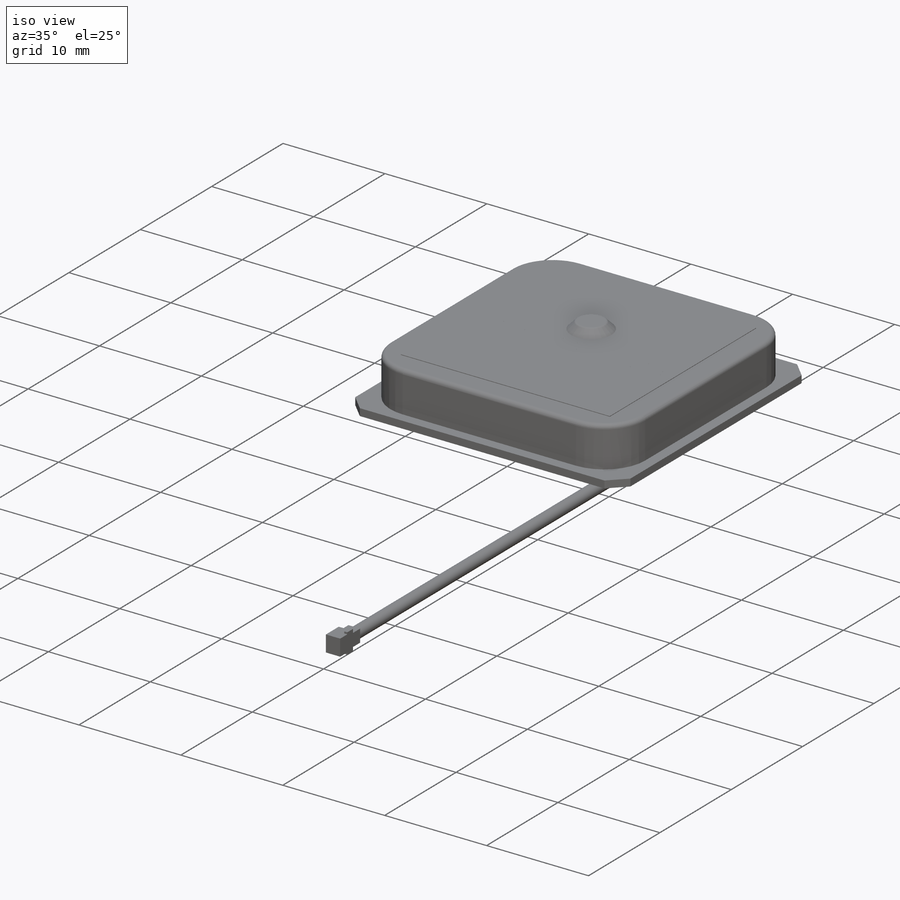
[diagram: iso view]
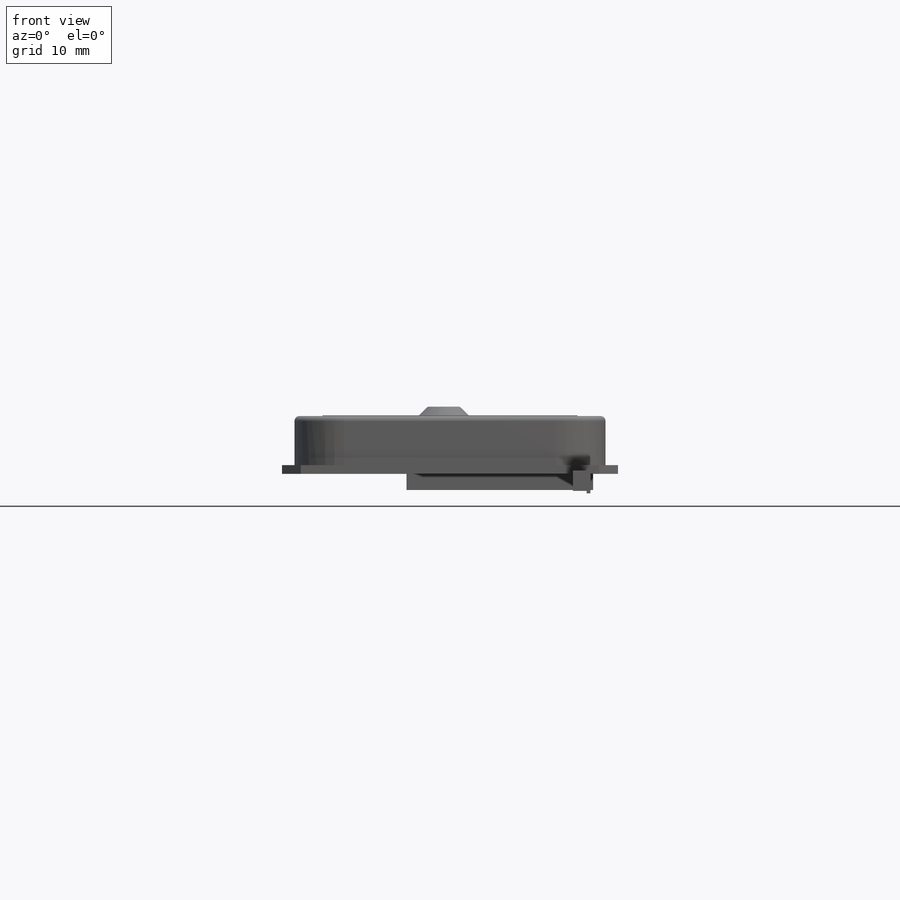
[diagram: front view]
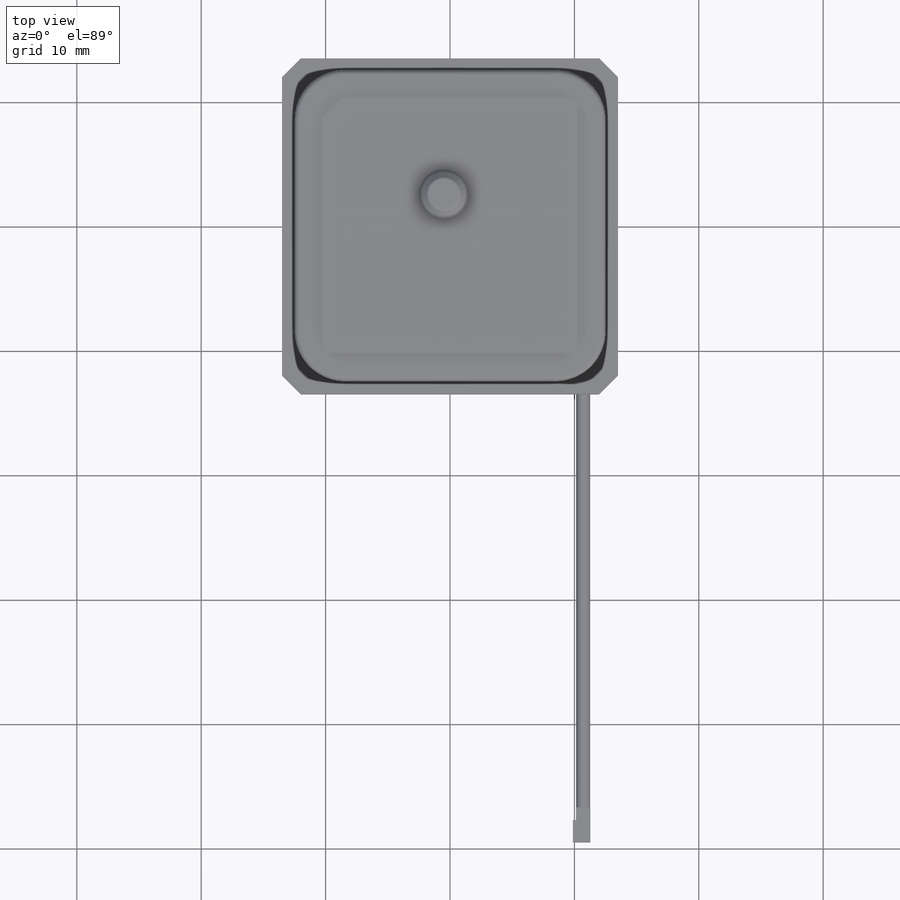
[diagram: top view]
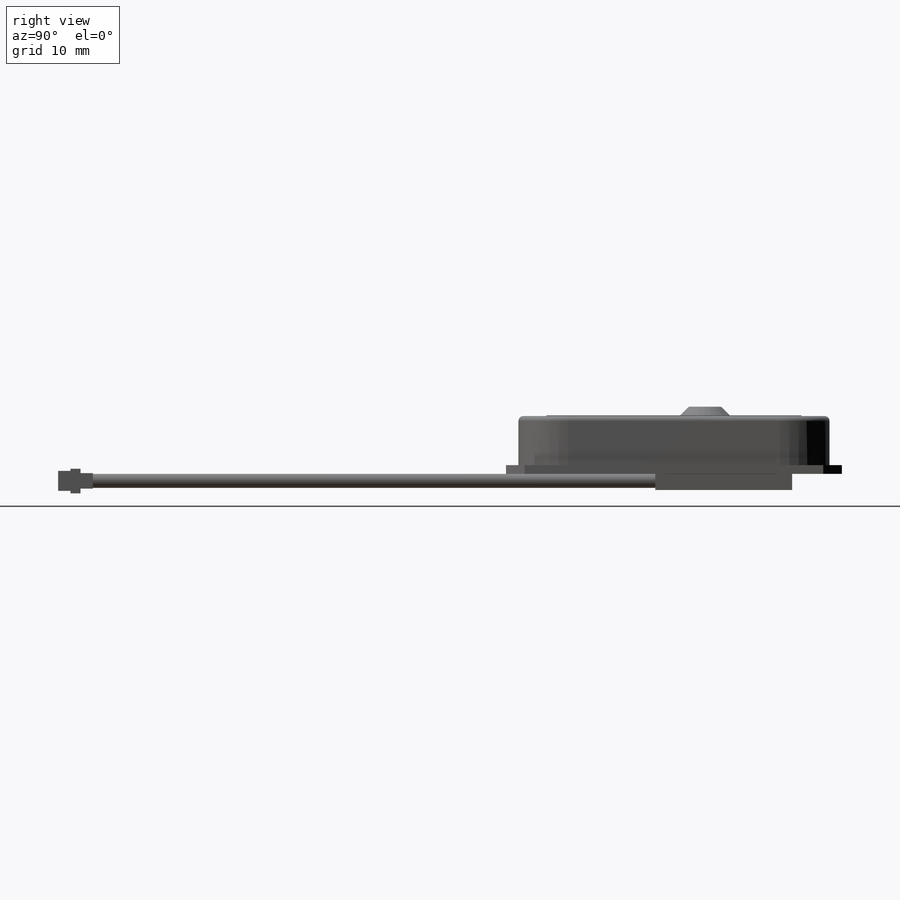
[diagram: right view]
SOLIDWORKS PART (.sldprt)
format: sldprt  version: not decoded by parser v0  size: 571,904 bytes
history: native  units: mm
features: sketch x10, extrude x9, fillet x3, chamfer x2, material x1, plane x1, cut_extrude x1 (+11 scaffold rows collapsed)
feature tree (38):
  scaffold x11  (default folders/planes/origin — collapsed)
  material  "Material <not specified>"
  sketch  "Sketch1"  dims[D1=27.0mm D2=27.0mm]
  extrude  "Boss-Extrude1"  Depth=0.7mm
  chamfer  "Chamfer2"  Distance=1.5mm Angle=45deg
  sketch  "Sketch2"  dims[D1=25.0mm D2=25.0mm D3=25.0mm]
  extrude  "Boss-Extrude3"  Depth=3.95mm
  fillet  "Fillet3"  Radius=4mm
  sketch  "Sketch3"  dims[c1.D1=15.0mm c1.D2=0.5mm c1.D3=2.1mm c1.D4=17.0mm c2.D2=11.0mm c2.D3=15.0mm c2.D1=15.0mm]
  fillet  "Fillet4"  Radius=0.4mm
  sketch  "Sketch5"  dims[c1.D1=7.7mm c1.D2=~2.279028mm c2.D2=45.0deg c2.D3=7.7mm c2.D4=3.85mm c2.D5=4.3mm c2.D1=20.5mm c3.D2=20.5mm]
  extrude  "Boss-Extrude6"  Depth=0.05mm
  chamfer  "Chamfer1"  Distance=1.5mm Angle=45deg
  sketch  "Sketch4"  dims[D1=4.0mm D2=14.0mm D3=11.0mm]
  extrude  "Boss-Extrude5"  Depth=0.7mm
  fillet  "Fillet1"  Radius=0.2mm
  extrude  "Boss-Extrude4"  Depth=1.3mm
  sketch  "Sketch6"  dims[D3=1.13mm D1=0.8mm D2=0.8mm]
  extrude  "Boss-Extrude10"  Depth=48mm
  plane  "Plane1"  Offset=0.22mm
  sketch  "Sketch7"  dims[c1.D1=1.8mm c1.D2=1.6mm c1.D3=1.4mm c2.D1=1.8mm]
  extrude  "Boss-Extrude11"  Depth=1.4mm
  sketch  "Sketch8"  dims[c1.D1=1.0mm c1.D2=1.0mm c2.D1=1.25mm]
  extrude  "Boss-Extrude12"  Depth=1.15mm
  sketch  "Sketch9"  dims[D1=0.8mm D2=0.3mm]
  extrude  "Boss-Extrude13"  Depth=1.8mm
  sketch  "Sketch10"
  cut_extrude  "Cut-Extrude1"  Depth=0.0001mm
decode coverage: 24 of 25 modeling features carry decoded parameters
note: ~ marks probable driven/reference dimensions
note: suppression state not decoded; provenance and decode notes live in map.json
